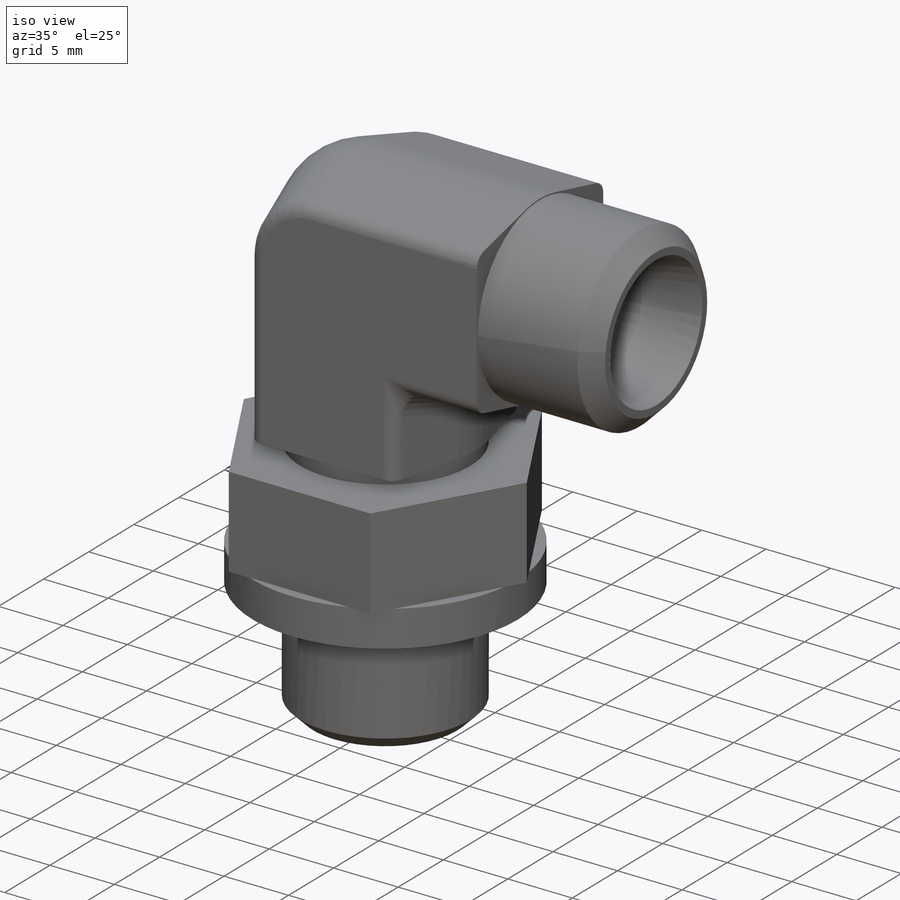
[diagram: iso view]
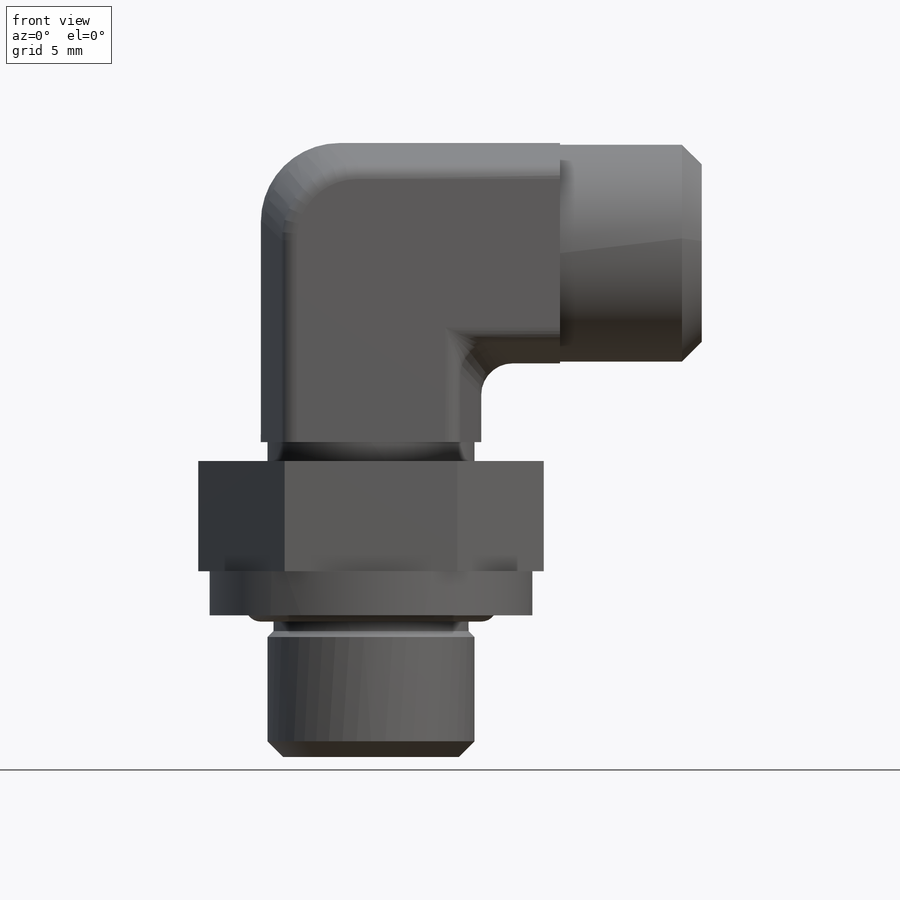
[diagram: front view]
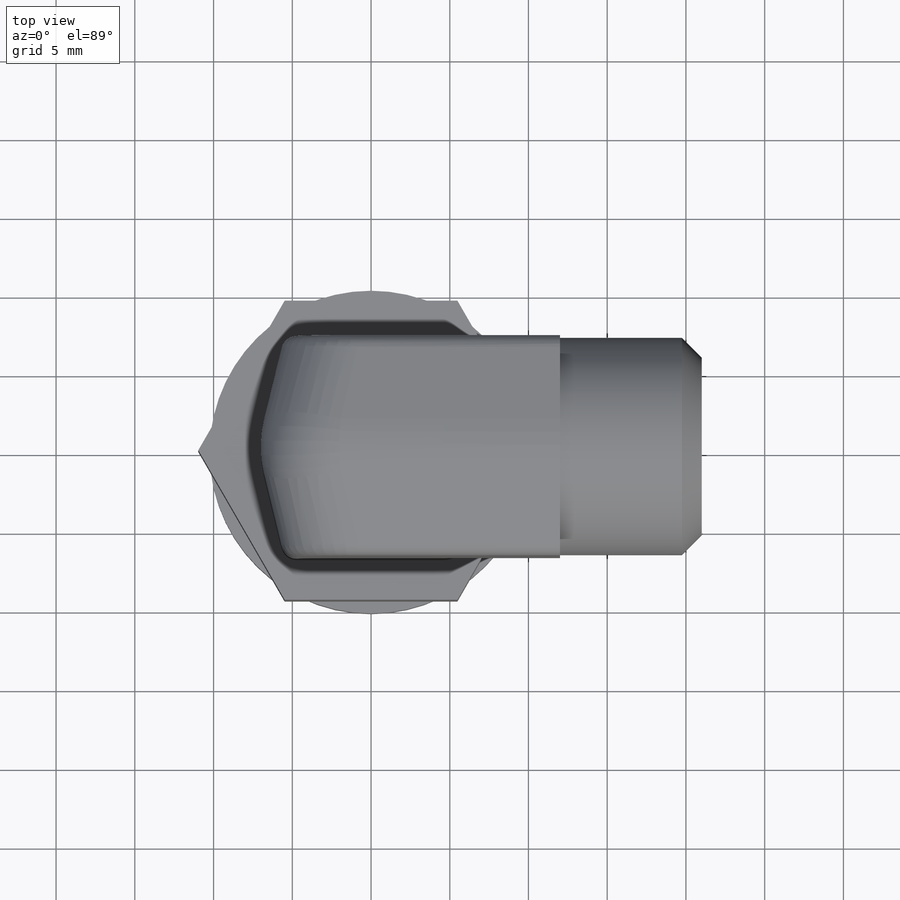
[diagram: top view]
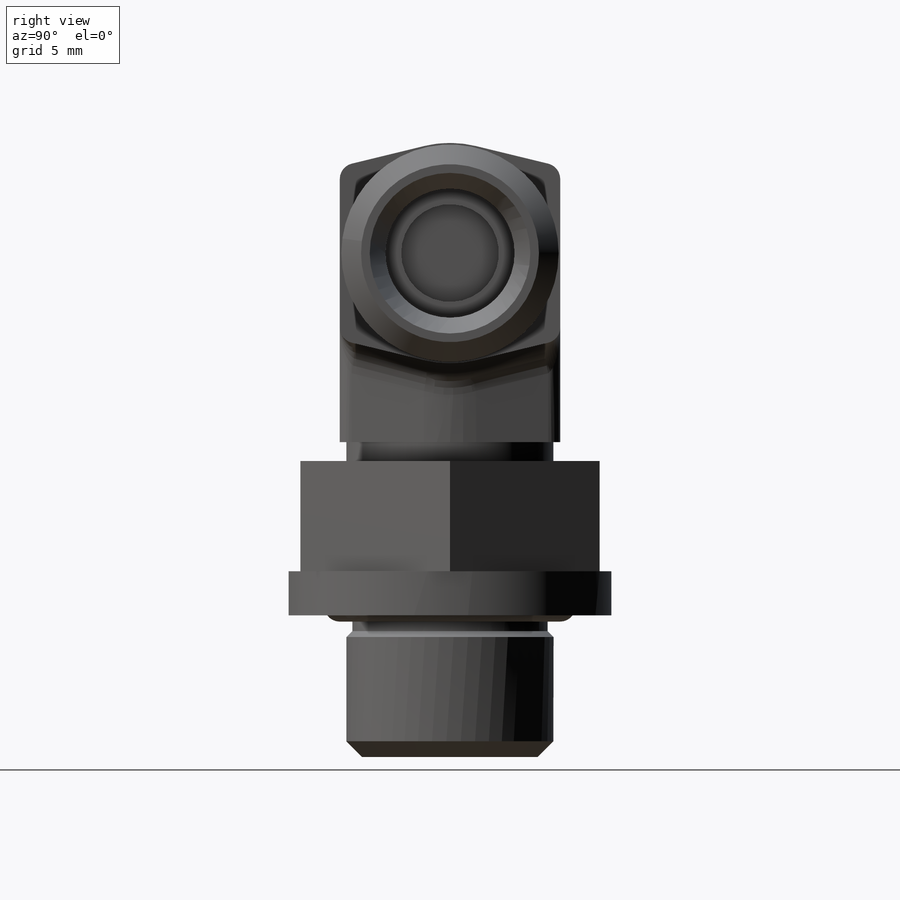
[diagram: right view]
SOLIDWORKS PART (.sldprt)
format: sldprt  version: not decoded by parser v0  size: 582,656 bytes
history: native  units: mm
features: sketch x5, plane x4, revolve x2, fillet x2, material x1, sweep x1, extrude x1 + 1 further entry (+11 scaffold rows collapsed; 1 parser-record rows omitted)
feature tree (29):
  parser-record x1  (decoder bookkeeping rows leaked as tree rows — omitted from the tree; the rows remain in map.json)
  scaffold x11  (default folders/planes/origin — collapsed)
  material  "Material <not specified>"
  plane  "Plane1"
  plane  "Plane2"
  plane  "Plane3"
  "Origin"  ID=-1
  sketch  "Sketch1"  dims[c1.D2=5.0mm c1.Afstand=14.0mm c1.D3=~42.219473mm c2.D3=90.0deg c3.D3=14.0mm c3.D2=14.0mm]
  plane  "Plane4"
  sketch  "Sketch2"  dims[D1=1.0mm D2=19.0mm D5=9.5mm CH1=19.0mm D4=11.0mm]
  sweep  "Sweep1"
  sketch  "Sketch3"  dims[c1.D1=7.0mm c1.D2=10.2mm c1.Tube=12.2mm c1.D4=10.0mm c1.D5=14.2mm c1.D6=1.5mm c1.D7=~0.677082mm c2.D7=45.0deg c2.D8=0.75mm c2.D9=17.8mm c3.D8=1.25mm c3.L2=14.0mm c3.L1=21.0mm c3.D3=1.5mm c4.D3=12.0deg c4.D6=17.0mm c4.D10=24.0mm c4.D11=3.0mm]
  revolve  "Revolve1"  Angle=360deg
  sketch  "Sketch4"  dims[c1.D10=1.0mm c1.D1=10.0mm c1.G=16.5mm c1.D3=14.4mm c1.D4=~1.741279mm c2.D4=~217.085412deg c3.D4=~1.741279mm c4.D4=45.0deg c4.D5=~1.484924mm c5.D5=45.0deg c6.D5=1.0mm c6.D6=23.0mm c6.D7=15.0mm c6.D8=1.8mm c6.D9=1.0mm c6.D10=~1.203164mm c6.D11=0.6mm c6.D12=14.0mm c6.D13=9.0mm c6.D14=23.5mm c6.D15=0.1mm c6.L3=37.0mm c6.D2=2.8mm c7.D8=2.8mm]
  revolve  "Revolve2"  Angle=360deg
  sketch  "Sketch5"  dims[CH2=22.0mm]
  extrude  "Extrude1"  Depth=7mm
  fillet  "Fillet1"  Radius=2mm
  fillet  "Fillet2"  Radius=5mm
decode coverage: 10 of 11 modeling features carry decoded parameters; 1 rows unclassified (native names shown)
note: ~ marks probable driven/reference dimensions
note: suppression state not decoded; provenance and decode notes live in map.json
